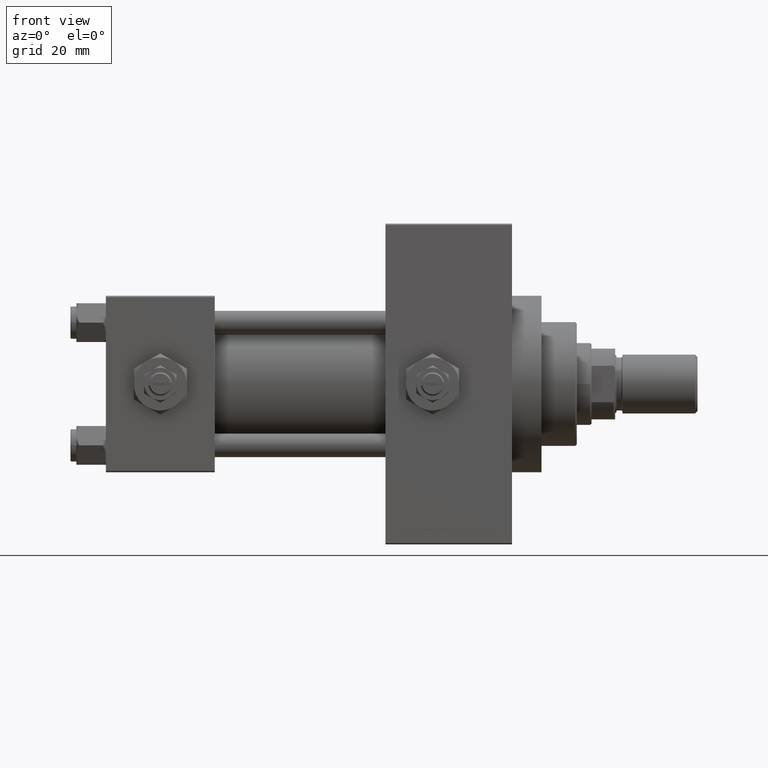
[diagram: clean part render]
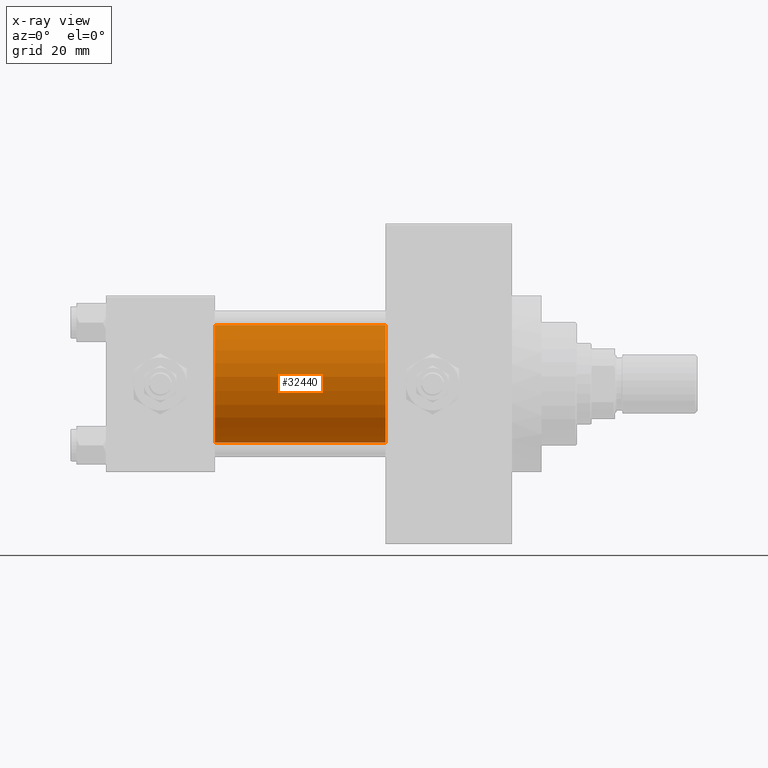
[diagram: x-ray — body ghosted, one internal face saturated and labeled with its STEP entity id]
A machine part, front view, then the same camera in x-ray: the body is ghosted and one INTERNAL B-rep face — a face not visible from any outside direction — is saturated and labeled: STEP entity #32440.
In plain terms, the highlighted cylindrical surface (partial cylindrical patch) has radius 20 mm, axis along (-1, -0, -0).
Its self-contained STEP definition (entity closure, byte-faithful):
#2497 = CIRCLE ( 'NONE', #8919, 20.00000000000000000 ) ;
#3443 = CARTESIAN_POINT ( 'NONE',  ( 95.00000000000000000, -2.602085213965210642E-15, 0.000000000000000000 ) ) ;
#5732 = DIRECTION ( 'NONE',  ( 0.000000000000000000, 0.000000000000000000, 1.000000000000000000 ) ) ;
#6079 = CARTESIAN_POINT ( 'NONE',  ( 37.00000000000000000, -2.602085213965210642E-15, 20.00000000000000000 ) ) ;
#6489 = EDGE_LOOP ( 'NONE', ( #37004, #39373, #22832, #12376 ) ) ;
#8919 = AXIS2_PLACEMENT_3D ( 'NONE', #3443, #33631, #33890 ) ;
#10071 = AXIS2_PLACEMENT_3D ( 'NONE', #24372, #47753, #5732 ) ;
#11075 = EDGE_CURVE ( 'NONE', #39678, #45011, #2497, .T. ) ;
#12376 = ORIENTED_EDGE ( 'NONE', *, *, #45190, .F. ) ;
#13282 = CYLINDRICAL_SURFACE ( 'NONE', #10071, 20.00000000000000000 ) ;
#17086 = FACE_OUTER_BOUND ( 'NONE', #6489, .T. ) ;
#19342 = VERTEX_POINT ( 'NONE', #29958 ) ;
#20007 = VECTOR ( 'NONE', #31477, 1000.000000000000000 ) ;
#22699 = CARTESIAN_POINT ( 'NONE',  ( 95.00000000000000000, -1.527916156705046464E-16, -20.00000000000000000 ) ) ;
#22832 = ORIENTED_EDGE ( 'NONE', *, *, #39562, .F. ) ;
#24211 = CARTESIAN_POINT ( 'NONE',  ( 37.00000000000000000, -2.602085213965210642E-15, 0.000000000000000000 ) ) ;
#24372 = CARTESIAN_POINT ( 'NONE',  ( 95.00000000000000000, -2.602085213965210642E-15, 0.000000000000000000 ) ) ;
#27698 = LINE ( 'NONE', #39266, #20007 ) ;
#29958 = CARTESIAN_POINT ( 'NONE',  ( 37.00000000000000000, -1.527916156705046464E-16, -20.00000000000000000 ) ) ;
#31339 = VECTOR ( 'NONE', #41246, 1000.000000000000000 ) ;
#31477 = DIRECTION ( 'NONE',  ( -1.000000000000000000, -0.000000000000000000, -0.000000000000000000 ) ) ;
#32440 = ADVANCED_FACE ( 'NONE', ( #17086 ), #13282, .F. ) ;
#33202 = CARTESIAN_POINT ( 'NONE',  ( 95.00000000000000000, -2.602085213965210642E-15, 20.00000000000000000 ) ) ;
#33532 = AXIS2_PLACEMENT_3D ( 'NONE', #24211, #34798, #35040 ) ;
#33631 = DIRECTION ( 'NONE',  ( 1.000000000000000000, 0.000000000000000000, 0.000000000000000000 ) ) ;
#33890 = DIRECTION ( 'NONE',  ( 0.000000000000000000, 0.000000000000000000, -1.000000000000000000 ) ) ;
#34798 = DIRECTION ( 'NONE',  ( 1.000000000000000000, 0.000000000000000000, 0.000000000000000000 ) ) ;
#35040 = DIRECTION ( 'NONE',  ( 0.000000000000000000, 0.000000000000000000, -1.000000000000000000 ) ) ;
#36227 = LINE ( 'NONE', #33202, #31339 ) ;
#37004 = ORIENTED_EDGE ( 'NONE', *, *, #11075, .T. ) ;
#39061 = CARTESIAN_POINT ( 'NONE',  ( 95.00000000000000000, -2.602085213965210642E-15, 20.00000000000000000 ) ) ;
#39266 = CARTESIAN_POINT ( 'NONE',  ( 95.00000000000000000, -1.527916156705046464E-16, -20.00000000000000000 ) ) ;
#39373 = ORIENTED_EDGE ( 'NONE', *, *, #42631, .T. ) ;
#39562 = EDGE_CURVE ( 'NONE', #42360, #19342, #47995, .T. ) ;
#39678 = VERTEX_POINT ( 'NONE', #39061 ) ;
#41246 = DIRECTION ( 'NONE',  ( -1.000000000000000000, -0.000000000000000000, -0.000000000000000000 ) ) ;
#42360 = VERTEX_POINT ( 'NONE', #6079 ) ;
#42631 = EDGE_CURVE ( 'NONE', #45011, #19342, #27698, .T. ) ;
#45011 = VERTEX_POINT ( 'NONE', #22699 ) ;
#45190 = EDGE_CURVE ( 'NONE', #39678, #42360, #36227, .T. ) ;
#47753 = DIRECTION ( 'NONE',  ( -1.000000000000000000, -0.000000000000000000, -0.000000000000000000 ) ) ;
#47995 = CIRCLE ( 'NONE', #33532, 20.00000000000000000 ) ;